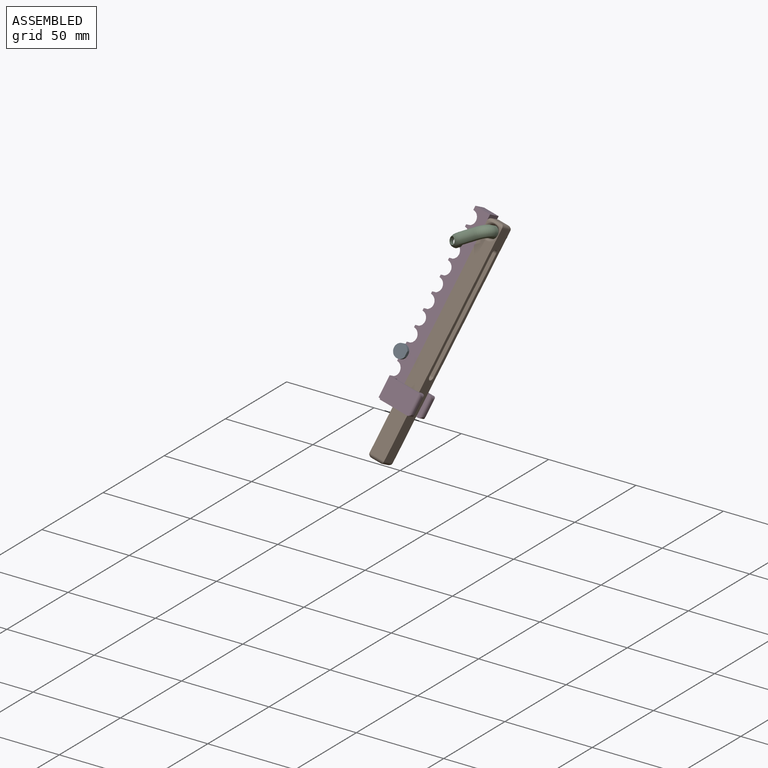
[diagram: assembled view]
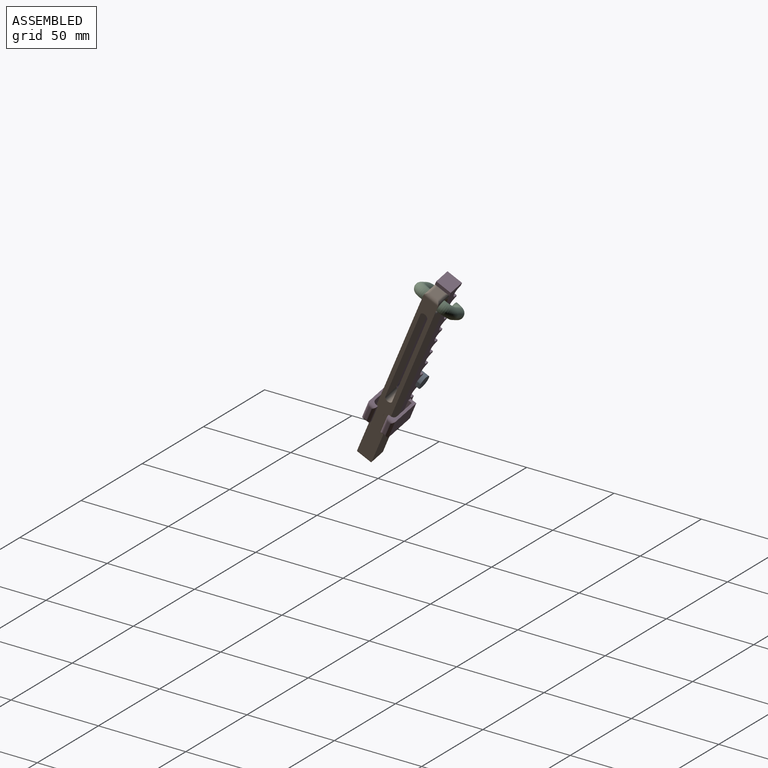
[diagram: assembled view, second angle]
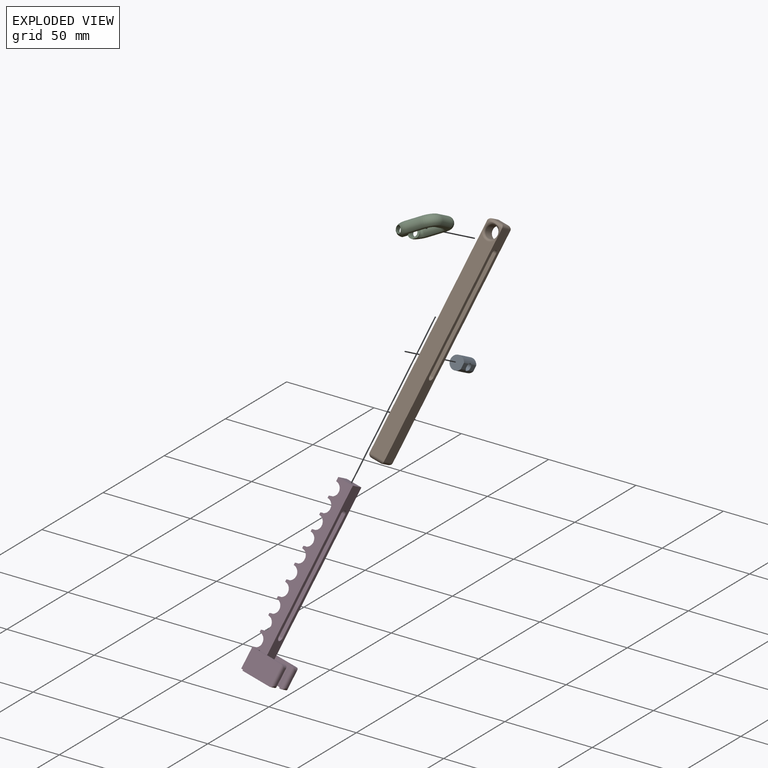
[diagram: exploded view]
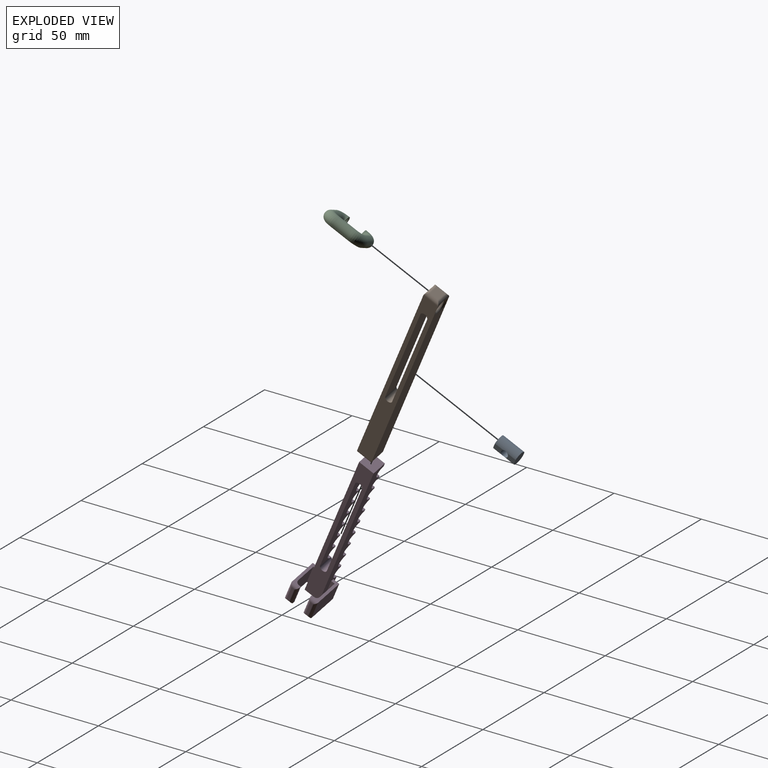
[diagram: exploded view, second angle]
ASSEMBLY  parts=4 mates=3
PART A: 7 faces, bbox 7.6x12.7x7.2 mm
  f0: cylinder r=3.81mm len=12.7mm, axis (0,1,0), area 230.9mm2, adj f1,f2,f3,f4,f5,f6
  f1: plane 7.62x7.24mm, normal (0,-1,0), area 44.8mm2, adj f0,f5
  f2: plane 7.62x7.24mm, normal (0,1,0), area 44.8mm2, adj f0,f6
  f3: cylinder r=2.08mm len=5.81mm, axis (0,0,1), area 75.2mm2, adj f0,f4,f5,f6
  f4: cone r=2.08mm half-angle=41deg, axis (0,0,1), area 19.2mm2, adj f0,f3
  f5: plane 5.09x3.31mm, normal (0,0,-1), area 15mm2, adj f0,f1,f3
  f6: plane 5.09x3.31mm, normal (0,0,-1), area 15mm2, adj f0,f2,f3
PART B: 25 faces, bbox 127.5x8.9x12.3 mm
  f0: plane 2.04x1.55mm, normal (0,-1,0), area 1.3mm2, adj f8,f12,f14
  f1: plane 2.04x1.55mm, normal (0,1,0), area 1.3mm2, adj f5,f11,f15
  f2: plane 117.76x8.89mm, normal (0,-1,0), area 1027.4mm2, adj f5,f8,f12,f18
  f3: plane 2.04x1.55mm, normal (0,1,0), area 1.3mm2, adj f8,f11,f15
  f4: plane 5.21x5.21mm, normal (-1,0,0), area 27.2mm2, adj f13,f14,f15,f16
  f5: plane 123.32x8.89mm, normal (0,0,-1), area 812.7mm2, adj f1,f2,f9,f10,f11,f12,f16,f20
  f6: plane 5.21x5.21mm, normal (1,0,0), area 27.2mm2, adj f17,f18,f19,f20
  f7: cylinder r=3.49mm len=6.99mm, axis (0,1,0), area 138.6mm2, adj f11,f12
  f8: plane 123.32x8.89mm, normal (0,0,1), area 812.7mm2, adj f0,f2,f3,f10,f11,f12,f13,f17
  f9: plane 2.04x1.55mm, normal (0,-1,0), area 1.3mm2, adj f5,f12,f14
  f10: plane 117.76x8.89mm, normal (0,1,0), area 1027.4mm2, adj f5,f8,f11,f19
  f11: torus R=4.78mm, axis (0,-1,0), area 46.9mm2, adj f1,f3,f5,f7,f8,f10,f15
  f12: torus R=4.78mm, axis (0,-1,0), area 46.9mm2, adj f0,f2,f5,f7,f8,f9,f14
  f13: cylinder r=1.84mm len=8.89mm, axis (0,1,0), area 21.8mm2, adj f4,f8,f14,f15
  f14: cylinder r=1.84mm len=8.89mm, axis (0,0,1), area 19.7mm2, adj f0,f4,f9,f12,f13,f16
  f15: cylinder r=1.84mm len=8.89mm, axis (0,0,-1), area 19.7mm2, adj f1,f3,f4,f11,f13,f16
  f16: cylinder r=1.84mm len=8.89mm, axis (0,1,0), area 21.8mm2, adj f4,f5,f14,f15
  f17: cylinder r=1.84mm len=8.89mm, axis (0,1,0), area 21.8mm2, adj f6,f8,f18,f19
  f18: cylinder r=1.84mm len=8.89mm, axis (0,0,-1), area 21.8mm2, adj f2,f6,f17,f20
  f19: cylinder r=1.84mm len=8.89mm, axis (0,0,1), area 21.8mm2, adj f6,f10,f17,f20
  f20: cylinder r=1.84mm len=8.89mm, axis (0,1,0), area 21.8mm2, adj f5,f6,f18,f19
  f21: plane 64.66x8.89mm, normal (0,1,0), area 574.8mm2, adj f5,f8,f22,f24
  f22: cylinder r=2.08mm len=8.89mm, axis (0,0,-1), area 61.5mm2, adj f5,f8,f21,f23
  f23: plane 64.66x8.89mm, normal (0,-1,0), area 574.8mm2, adj f5,f8,f22,f24
  f24: cylinder r=2.08mm len=8.89mm, axis (0,0,-1), area 61.5mm2, adj f5,f8,f21,f23
PART C: 12 faces, bbox 6.4x26.7x25.4 mm
  f0: torus R=4.45mm, axis (-1,0,0), area 101.4mm2, adj f4,f8,f9,f11
  f1: cylinder r=3.17mm len=10.16mm, axis (0,1,0), area 175.2mm2, adj f2,f3,f11
  f2: torus R=4.45mm, axis (-1,0,0), area 120.4mm2, adj f1,f4,f11
  f3: torus R=4.45mm, axis (1,0,0), area 120.4mm2, adj f1,f5,f11
  f4: cylinder r=3.17mm len=8.89mm, axis (0,0,-1), area 153.3mm2, adj f0,f2,f11
  f5: cylinder r=3.17mm len=8.89mm, axis (0,0,-1), area 153.3mm2, adj f3,f6,f11
  f6: torus R=4.45mm, axis (1,0,0), area 101.4mm2, adj f5,f7,f10,f11
  f7: plane 6.35x6.07mm, normal (0,1,0), area 17.5mm2, adj f6,f10,f11
  f8: plane 6.35x6.07mm, normal (0,-1,0), area 17.5mm2, adj f0,f9,f11
  f9: cylinder r=2.08mm len=7.25mm, axis (0,-1,0), area 70.7mm2, adj f0,f8
  f10: cylinder r=2.08mm len=7.25mm, axis (0,-1,0), area 70.7mm2, adj f6,f7
  f11: plane 21.68x20.41mm, normal (-1,0,0), area 146.8mm2, adj f0,f1,f2,f3,f4,f5,f6,f7
PART D: 70 faces, bbox 101.6x16.2x21 mm
  f0: cylinder r=3.81mm len=7.62mm, axis (0,1,0), area 28.8mm2, adj f1,f18,f39,f66,f69
  f1: plane 2.37x1.27mm, normal (0,0,1), area 3mm2, adj f0,f2,f39,f66
  f2: cylinder r=3.81mm len=7.62mm, axis (0,1,0), area 28.4mm2, adj f1,f3,f39,f66
  f3: plane 2.37x1.27mm, normal (0,0,1), area 3mm2, adj f2,f4,f39,f66
  f4: cylinder r=3.81mm len=7.62mm, axis (0,1,0), area 28.4mm2, adj f3,f5,f39,f66
  f5: plane 2.37x1.27mm, normal (0,0,1), area 3mm2, adj f4,f6,f39,f66
  f6: cylinder r=3.81mm len=7.62mm, axis (0,1,0), area 28.4mm2, adj f5,f7,f39,f66
  f7: plane 2.37x1.27mm, normal (0,0,1), area 3mm2, adj f6,f8,f39,f66
  f8: cylinder r=3.81mm len=7.62mm, axis (0,1,0), area 28.4mm2, adj f7,f9,f39,f66
  f9: plane 2.37x1.27mm, normal (0,0,1), area 3mm2, adj f8,f10,f39,f66
  f10: cylinder r=3.81mm len=7.62mm, axis (0,1,0), area 28.4mm2, adj f9,f11,f39,f66
  f11: plane 2.37x1.27mm, normal (0,0,1), area 3mm2, adj f10,f12,f39,f66
  f12: cylinder r=3.81mm len=7.62mm, axis (0,1,0), area 28.4mm2, adj f11,f13,f39,f66
  f13: plane 2.37x1.27mm, normal (0,0,1), area 3mm2, adj f12,f14,f39,f66
  f14: cylinder r=3.81mm len=8.89mm, axis (0,1,0), area 74.1mm2, adj f13,f15,f32,f33,f39,f66,f67,f68
  f15: plane 101.6x8.89mm, normal (0,1,0), area 655.7mm2, adj f14,f16,f17,f18,f19,f20,f21,f22
  f16: plane 11.76x8.89mm, normal (0,0,1), area 104.5mm2, adj f15,f17,f38,f39
  f17: cylinder r=3.81mm len=8.89mm, axis (0,1,0), area 106.4mm2, adj f15,f16,f18,f39
  f18: plane 8.89x1.27mm, normal (0,0,1), area 8.8mm2, adj f0,f15,f17,f19,f39,f69
  f19: cylinder r=3.81mm len=7.62mm, axis (0,1,0), area 28.8mm2, adj f15,f18,f20,f68,f69
  f20: plane 2.37x1.27mm, normal (0,0,1), area 3mm2, adj f15,f19,f21,f68
  f21: cylinder r=3.81mm len=7.62mm, axis (0,1,0), area 28.4mm2, adj f15,f20,f22,f68
  f22: plane 2.37x1.27mm, normal (0,0,1), area 3mm2, adj f15,f21,f23,f68
  f23: cylinder r=3.81mm len=7.62mm, axis (0,1,0), area 28.4mm2, adj f15,f22,f24,f68
  f24: plane 2.37x1.27mm, normal (0,0,1), area 3mm2, adj f15,f23,f25,f68
  f25: cylinder r=3.81mm len=7.62mm, axis (0,1,0), area 28.4mm2, adj f15,f24,f26,f68
  f26: plane 2.37x1.27mm, normal (0,0,1), area 3mm2, adj f15,f25,f27,f68
  f27: cylinder r=3.81mm len=7.62mm, axis (0,1,0), area 28.4mm2, adj f15,f26,f28,f68
  f28: plane 2.37x1.27mm, normal (0,0,1), area 3mm2, adj f15,f27,f29,f68
  f29: cylinder r=3.81mm len=7.62mm, axis (0,1,0), area 28.4mm2, adj f15,f28,f30,f68
  f30: plane 2.37x1.27mm, normal (0,0,1), area 3mm2, adj f15,f29,f31,f68
  f31: cylinder r=3.81mm len=7.62mm, axis (0,1,0), area 28.4mm2, adj f15,f30,f32,f68
  f32: plane 2.37x1.27mm, normal (0,0,1), area 3mm2, adj f14,f15,f31,f68
  f33: plane 8.89x1.27mm, normal (0,0,1), area 11.3mm2, adj f14,f15,f34,f39
  f34: cylinder r=3.81mm len=8.89mm, axis (0,1,0), area 106.4mm2, adj f15,f33,f35,f39
  f35: plane 8.89x2.21mm, normal (0,0,1), area 19.7mm2, adj f15,f34,f36,f39
  f36: plane 8.89x8.89mm, normal (-1,0,0), area 79mm2, adj f15,f35,f37,f39
  f37: plane 101.6x8.89mm, normal (0,0,-1), area 619.8mm2, adj f15,f36,f38,f39,f66,f67,f68,f69
  f38: plane 19.3x16.17mm, normal (1,0,0), area 144.3mm2, adj f15,f16,f37,f39,f40,f41,f42,f43
  f39: plane 101.6x8.89mm, normal (0,-1,0), area 655.7mm2, adj f0,f1,f2,f3,f4,f5,f6,f7
  f40: plane 12.04x2.1mm, normal (0,0,-1), area 25.2mm2, adj f15,f38,f41,f47
  f41: plane 12.04x11.82mm, normal (0,-1,0), area 142.4mm2, adj f38,f40,f47,f57
  f42: plane 12.04x1.03mm, normal (0,0,1), area 12.4mm2, adj f38,f43,f47,f57
  f43: plane 12.04x0.88mm, normal (0,-1,0), area 10.6mm2, adj f38,f42,f47,f62
  f44: plane 8.73x1.41mm, normal (0,0,-1), area 12.3mm2, adj f62,f63,f64,f65
  f45: plane 16.47x12.04mm, normal (0,1,0), area 198.3mm2, adj f38,f46,f47,f65
  f46: plane 12.04x3.64mm, normal (0,0,1), area 43.8mm2, adj f15,f38,f45,f47
  f47: plane 16.47x4.72mm, normal (-1,0,0), area 32.6mm2, adj f15,f40,f41,f42,f43,f45,f46,f57
  f48: plane 12.04x3.64mm, normal (0,0,1), area 43.8mm2, adj f38,f39,f49,f55
  f49: plane 16.47x12.04mm, normal (0,-1,0), area 198.3mm2, adj f38,f48,f55,f61
  f50: plane 8.73x1.41mm, normal (0,0,-1), area 12.3mm2, adj f58,f59,f60,f61
  f51: plane 12.04x0.88mm, normal (0,1,0), area 10.6mm2, adj f38,f52,f55,f58
  f52: plane 12.04x1.03mm, normal (0,0,1), area 12.4mm2, adj f38,f51,f55,f56
  f53: plane 12.04x11.82mm, normal (0,1,0), area 142.4mm2, adj f38,f54,f55,f56
  f54: plane 12.04x2.1mm, normal (0,0,-1), area 25.2mm2, adj f38,f39,f53,f55
  f55: plane 16.47x4.72mm, normal (-1,0,0), area 32.6mm2, adj f39,f48,f49,f51,f52,f53,f54,f56
  f56: cylinder r=2.15mm len=12.04mm, axis (-1,0,0), area 40.6mm2, adj f38,f52,f53,f55
  f57: cylinder r=2.15mm len=12.04mm, axis (-1,0,0), area 40.6mm2, adj f38,f41,f42,f47
  f58: cylinder r=1.66mm len=12.04mm, axis (1,0,0), area 28.2mm2, adj f50,f51,f59,f60
  f59: cylinder r=1.66mm len=4.72mm, axis (0,-1,0), area 9.1mm2, adj f50,f55,f58,f61
  f60: cylinder r=1.66mm len=4.72mm, axis (0,1,0), area 9.1mm2, adj f38,f50,f58,f61
  f61: cylinder r=1.66mm len=12.04mm, axis (1,0,0), area 28.2mm2, adj f49,f50,f59,f60
  f62: cylinder r=1.66mm len=12.04mm, axis (1,0,0), area 28.2mm2, adj f43,f44,f63,f64
  f63: cylinder r=1.66mm len=4.72mm, axis (0,-1,0), area 9.1mm2, adj f44,f47,f62,f65
  f64: cylinder r=1.66mm len=4.72mm, axis (0,1,0), area 9.1mm2, adj f38,f44,f62,f65
  f65: cylinder r=1.66mm len=12.04mm, axis (1,0,0), area 28.2mm2, adj f44,f45,f63,f64
  f66: plane 64.66x8.89mm, normal (0,1,0), area 406.7mm2, adj f0,f1,f2,f3,f4,f5,f6,f7
  f67: cylinder r=2.08mm len=5.75mm, axis (0,0,-1), area 37.4mm2, adj f14,f37,f66,f68
  f68: plane 64.66x8.89mm, normal (0,-1,0), area 406.7mm2, adj f14,f19,f20,f21,f22,f23,f24,f25
  f69: cylinder r=2.08mm len=8.89mm, axis (0,0,-1), area 56.4mm2, adj f0,f18,f19,f37,f66,f68
PLACE A rot(axis=(0.61,-0.17,-0.78),160.1deg) t=(-82.19,-18.08,-35.27)mm
PLACE B rot(axis=(-0.22,0.95,-0.21),106.4deg) t=(-54.65,3.6,-20.63)mm
PLACE C rot(axis=(-0.1,-0.96,0.25),121deg) t=(-83.11,36.57,45.62)mm
PLACE D rot(axis=(0.61,-0.17,-0.78),160.1deg) t=(-67.04,-3.16,-12.52)mm
MATE slider D.f36 <-> B.f4  axis (0.22,0.46,0.86) through (-61.2,22.87,27.1)mm
MATE revolute C.f1 <-> B.f7  axis (-0.07,0.89,-0.46) through (-54.08,19.31,19.19)mm
MATE revolute A.f1 <-> D.f0  axis (-0.07,0.89,-0.46) through (-83.11,-6.83,-41.1)mm
